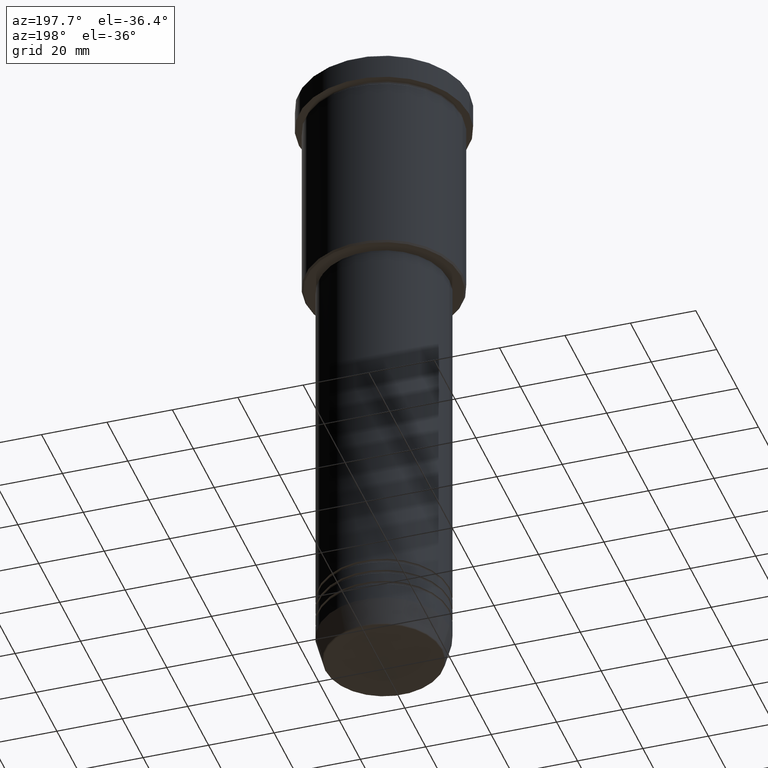
[diagram: clean part render]
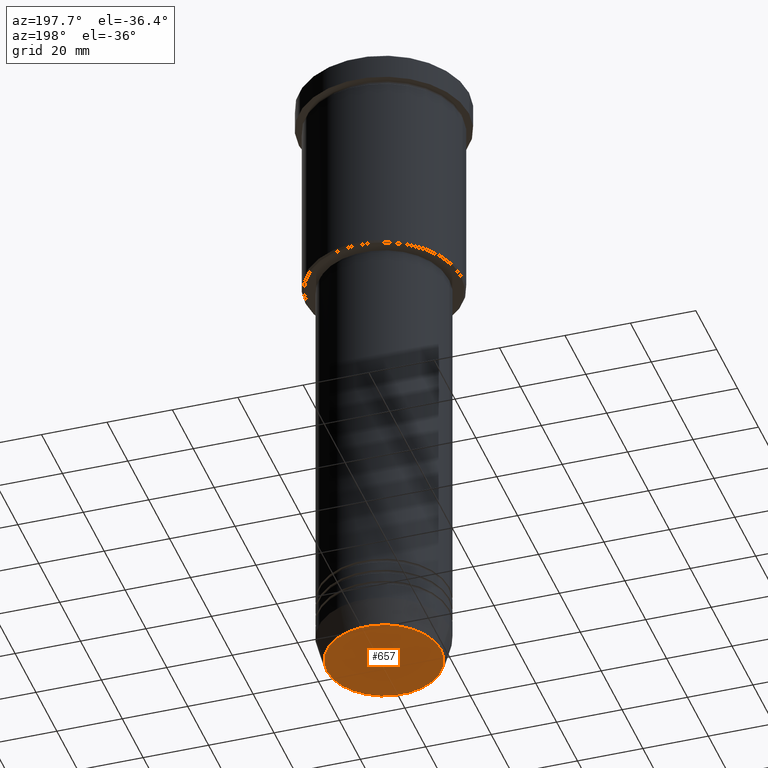
[diagram: same view with one face highlighted and labeled with its STEP entity id]
A machine part, auxiliary view. The second image highlights one B-rep face of the part: STEP entity #657.
In plain terms, the highlighted planar face has unit normal (0, -0, 1).
Its self-contained STEP definition (entity closure, byte-faithful):
#47 = CARTESIAN_POINT ( 'NONE',  ( -17.47274296656154036, 2.169366823916868503E-15, -200.0000000000000000 ) ) ;
#71 = CARTESIAN_POINT ( 'NONE',  ( 17.47274296656154036, 0.000000000000000000, -200.0000000000000000 ) ) ;
#86 = VERTEX_POINT ( 'NONE', #71 ) ;
#87 = PLANE ( 'NONE',  #1060 ) ;
#155 = AXIS2_PLACEMENT_3D ( 'NONE', #367, #546, #1093 ) ;
#201 = EDGE_CURVE ( 'NONE', #466, #86, #999, .T. ) ;
#204 = CARTESIAN_POINT ( 'NONE',  ( 0.000000000000000000, 0.000000000000000000, -200.0000000000000000 ) ) ;
#262 = DIRECTION ( 'NONE',  ( 1.000000000000000000, 0.000000000000000000, 0.000000000000000000 ) ) ;
#305 = AXIS2_PLACEMENT_3D ( 'NONE', #204, #1102, #1094 ) ;
#352 = DIRECTION ( 'NONE',  ( 0.000000000000000000, -0.000000000000000000, 1.000000000000000000 ) ) ;
#365 = ORIENTED_EDGE ( 'NONE', *, *, #667, .T. ) ;
#367 = CARTESIAN_POINT ( 'NONE',  ( 0.000000000000000000, 0.000000000000000000, -200.0000000000000000 ) ) ;
#466 = VERTEX_POINT ( 'NONE', #47 ) ;
#546 = DIRECTION ( 'NONE',  ( 0.000000000000000000, 0.000000000000000000, -1.000000000000000000 ) ) ;
#657 = ADVANCED_FACE ( 'NONE', ( #816 ), #87, .F. ) ;
#667 = EDGE_CURVE ( 'NONE', #86, #466, #710, .T. ) ;
#710 = CIRCLE ( 'NONE', #155, 17.47274296656154036 ) ;
#816 = FACE_OUTER_BOUND ( 'NONE', #1071, .T. ) ;
#916 = CARTESIAN_POINT ( 'NONE',  ( 0.000000000000000000, 0.000000000000000000, -200.0000000000000000 ) ) ;
#925 = ORIENTED_EDGE ( 'NONE', *, *, #201, .T. ) ;
#999 = CIRCLE ( 'NONE', #305, 17.47274296656154036 ) ;
#1060 = AXIS2_PLACEMENT_3D ( 'NONE', #916, #352, #262 ) ;
#1071 = EDGE_LOOP ( 'NONE', ( #365, #925 ) ) ;
#1093 = DIRECTION ( 'NONE',  ( 1.000000000000000000, 0.000000000000000000, 0.000000000000000000 ) ) ;
#1094 = DIRECTION ( 'NONE',  ( 1.000000000000000000, 0.000000000000000000, 0.000000000000000000 ) ) ;
#1102 = DIRECTION ( 'NONE',  ( 0.000000000000000000, 0.000000000000000000, -1.000000000000000000 ) ) ;